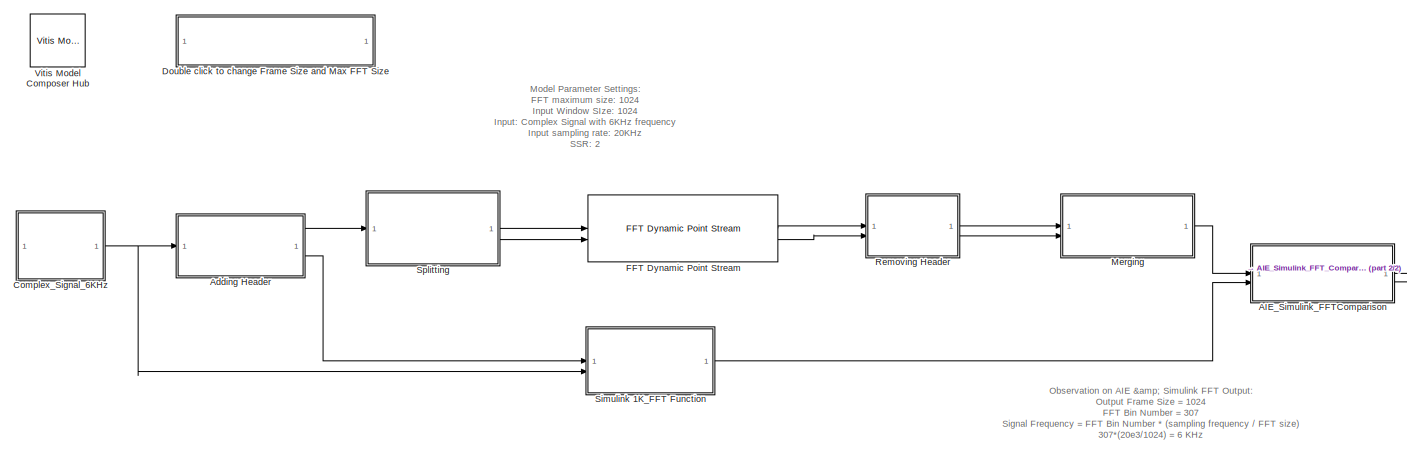
[diagram: root canvas - part 1/2, most of the canvas]
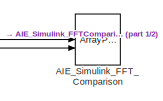
[diagram: root canvas - part 2/2, middle right region]
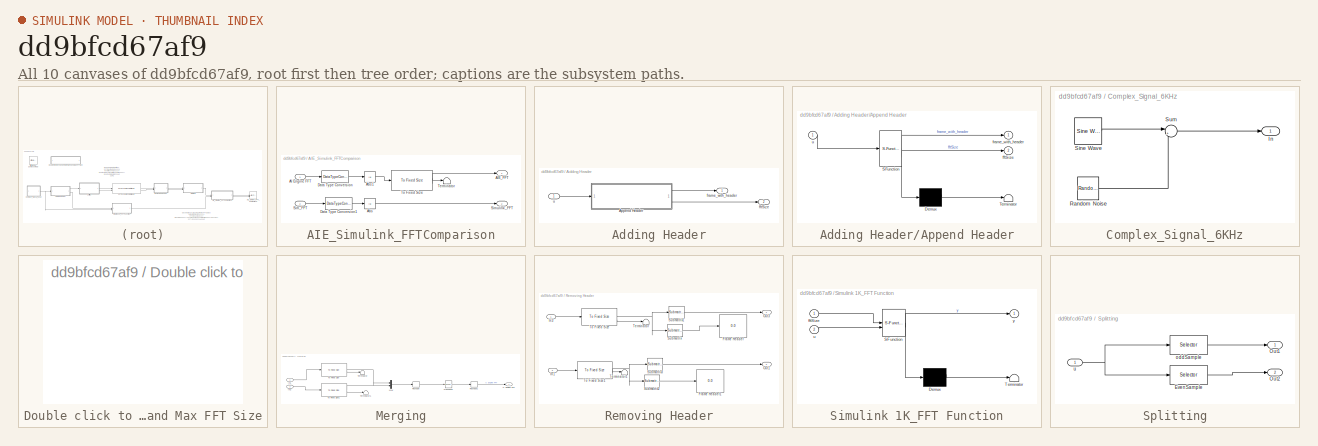
[diagram: thumbnail index - all 10 canvases of the model, root first then tree order]
MODEL slx_dd9bfcd67af9
KIND model
CONFIG AbsTol = auto
CONFIG EnableMultiTasking = off
CONFIG FixedStep = auto
CONFIG MaxStep = auto
CONFIG MinStep = auto
CONFIG RelTol = 1e-3
CONFIG SampleTimeConstraint = Unconstrained
CONFIG SolverName = VariableStepAuto
CONFIG StartTime = 0.0
CONFIG StopTime = 1
WORKSPACE source: mxarray member
WORKSPACE frame_size = 1024
WORKSPACE max_fft_size = 1024
BLOCK [SubSystem] AIE_Simulink_FFTComparison
BLOCK [Inport] AIE_Simulink_FFTComparison/AI Engine FFT
BLOCK [Outport] AIE_Simulink_FFTComparison/AIE_FFT
BLOCK [Abs] AIE_Simulink_FFTComparison/Abs
  SaturateOnIntegerOverflow = off
BLOCK [Abs] AIE_Simulink_FFTComparison/Abs1
  OutDataTypeStr = single
  SaturateOnIntegerOverflow = off
BLOCK [DataTypeConversion] AIE_Simulink_FFTComparison/Data Type Conversion
  OutDataTypeStr = single
  RndMeth = Floor
  SaturateOnIntegerOverflow = off
BLOCK [DataTypeConversion] AIE_Simulink_FFTComparison/Data Type Conversion1
  OutDataTypeStr = single
  RndMeth = Floor
  SaturateOnIntegerOverflow = off
BLOCK [Inport] AIE_Simulink_FFTComparison/Sim_FFT
  Port = 2
BLOCK [Outport] AIE_Simulink_FFTComparison/Simulink_FFT
  Port = 2
BLOCK [Terminator] AIE_Simulink_FFTComparison/Terminator
BLOCK [Reference] AIE_Simulink_FFTComparison/To Fixed Size  REF=aieUtilities/To Fixed Size
  SourceBlock = aieUtilities/To Fixed Size
  SourceType = To Fixed Size
BLOCK [ArrayPlot] AIE_Simulink_FFT_Comparison
  AxesScaling = Manual
  GraphicalSettings = {"Cursors":{"Enabled":false,"XLocation":[2,8],"SnapToData":false,"LockSpacing":false,"ShowText":false},"Peaks":{"NumPeaks":1,"MinHeight":"-Inf","MinDistance":1,"Threshold":0,"LabelPeaks":false,"LabelFormat":"x + y","Enabled":true},"Stats":{"ShowMax":true,"ShowMin":true,"ShowPeakToPeak":true,"ShowMean":true,"ShowVariance":false,"ShowStandardDeviation":true,"ShowMedian":true,"ShowRMS":true,"ShowMean...<+31ch>
  NumInputPorts = 2
  PlotType = Line
  ShowLegend = on
  WasSavedAsWebScope = on
  WindowPosition = [240.000000,110.000000,800.000000,500.000000,]
  YLimits = [-50,1100]
BLOCK [SubSystem] Adding Header
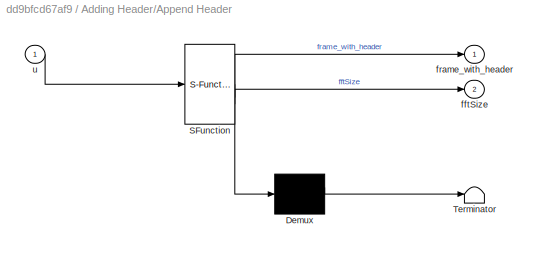
BLOCK [SubSystem] Adding Header/Append Header
  ErrorFcn = Stateflow.Translate.translate
  PermitHierarchicalResolution = ExplicitOnly
  SFBlockType = MATLAB Function
  TreatAsAtomicUnit = on
BLOCK [Demux] Adding Header/Append Header/ Demux 
  Outputs = 1
BLOCK [S-Function] Adding Header/Append Header/ SFunction 
  EnableBusSupport = off
  FunctionName = sf_sfun
  Parameters = fftSizeInput
  PortCounts = [1 3]
  SFcnIsStateOwnerBlock = off
  SFunctionDeploymentMode = off
  Tag = Stateflow S-Function 1
BLOCK [Terminator] Adding Header/Append Header/ Terminator 
BLOCK [Outport] Adding Header/Append Header/fftSize
  Port = 2
BLOCK [Outport] Adding Header/Append Header/frame_with_header
BLOCK [Inport] Adding Header/Append Header/u
BLOCK [Outport] Adding Header/fftSize
  Port = 2
BLOCK [Outport] Adding Header/frame_with_header
BLOCK [Inport] Adding Header/u
BLOCK [SubSystem] Complex_Signal_6KHz
BLOCK [Outport] Complex_Signal_6KHz/In
BLOCK [Reference] Complex_Signal_6KHz/Random Noise  REF=dspobslib/Random
Source
  SourceBlock = dspobslib/Random\nSource
  SourceType = Random Source Obsolete
  UserDataPersistent = on
BLOCK [Reference] Complex_Signal_6KHz/Sine Wave  REF=dspsrcs4/Sine Wave
  SourceBlock = dspsrcs4/Sine Wave
  SourceType = Sine Wave
BLOCK [Sum] Complex_Signal_6KHz/Sum
  Inputs = |++
BLOCK [SubSystem] Double click to change Frame Size and Max FFT Size
BLOCK [Reference] FFT Dynamic Point Stream  REF=aieDSP/FFT Dynamic Point Stream
  SourceBlock = aieDSP/FFT Dynamic Point Stream
  SourceType = FFT Dynamic Point Stream
BLOCK [SubSystem] Merging
BLOCK [Outport] Merging/AI Engine FFT
BLOCK [Inport] Merging/In1
BLOCK [Inport] Merging/In2
  Port = 2
BLOCK [Mux] Merging/Mux
  DisplayOption = bar
  Inputs = 2
BLOCK [Reshape] Merging/Reshape
  OutputDimensionality = Customize
  OutputDimensions = [512, 2]
BLOCK [Reshape] Merging/Reshape1
  OutputDimensions = [1, 10]
BLOCK [Terminator] Merging/Terminator
BLOCK [Terminator] Merging/Terminator1
BLOCK [Reference] Merging/To Fixed Size  REF=aieUtilities/To Fixed Size
  SourceBlock = aieUtilities/To Fixed Size
  SourceType = To Fixed Size
BLOCK [Reference] Merging/To Fixed Size1  REF=aieUtilities/To Fixed Size
  SourceBlock = aieUtilities/To Fixed Size
  SourceType = To Fixed Size
BLOCK [Math] Merging/Transpose
  Operator = transpose
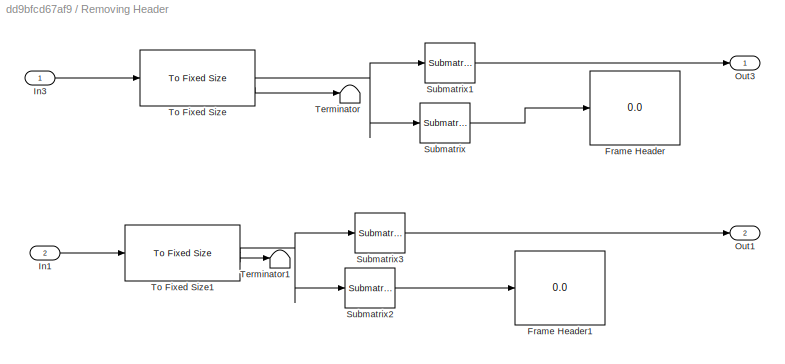
BLOCK [SubSystem] Removing Header
BLOCK [Display] Removing Header/Frame Header
  Decimation = 1
BLOCK [Display] Removing Header/Frame Header1
  Decimation = 1
BLOCK [Inport] Removing Header/In1
  Port = 2
BLOCK [Inport] Removing Header/In3
BLOCK [Outport] Removing Header/Out1
  Port = 2
BLOCK [Outport] Removing Header/Out3
BLOCK [Reference] Removing Header/Submatrix  REF=matrix_library/Submatrix
  SourceBlock = matrix_library/Submatrix
  SourceType = Submatrix
BLOCK [Reference] Removing Header/Submatrix1  REF=matrix_library/Submatrix
  SourceBlock = matrix_library/Submatrix
  SourceType = Submatrix
BLOCK [Reference] Removing Header/Submatrix2  REF=matrix_library/Submatrix
  SourceBlock = matrix_library/Submatrix
  SourceType = Submatrix
BLOCK [Reference] Removing Header/Submatrix3  REF=matrix_library/Submatrix
  SourceBlock = matrix_library/Submatrix
  SourceType = Submatrix
BLOCK [Terminator] Removing Header/Terminator
BLOCK [Terminator] Removing Header/Terminator1
BLOCK [Reference] Removing Header/To Fixed Size  REF=aieUtilities/To Fixed Size
  SourceBlock = aieUtilities/To Fixed Size
  SourceType = To Fixed Size
BLOCK [Reference] Removing Header/To Fixed Size1  REF=aieUtilities/To Fixed Size
  SourceBlock = aieUtilities/To Fixed Size
  SourceType = To Fixed Size
BLOCK [SubSystem] Simulink 1K_FFT Function
  ErrorFcn = Stateflow.Translate.translate
  PermitHierarchicalResolution = ExplicitOnly
  SFBlockType = MATLAB Function
  TreatAsAtomicUnit = on
BLOCK [Demux] Simulink 1K_FFT Function/ Demux 
  Outputs = 1
BLOCK [S-Function] Simulink 1K_FFT Function/ SFunction 
  EnableBusSupport = off
  FunctionName = sf_sfun
  Parameters = frame_size,max_fft_size
  PortCounts = [2 2]
  SFcnIsStateOwnerBlock = off
  SFunctionDeploymentMode = off
  Tag = Stateflow S-Function 2
BLOCK [Terminator] Simulink 1K_FFT Function/ Terminator 
BLOCK [Inport] Simulink 1K_FFT Function/fftSize
BLOCK [Inport] Simulink 1K_FFT Function/u
  Port = 2
BLOCK [Outport] Simulink 1K_FFT Function/y
BLOCK [SubSystem] Splitting
BLOCK [Selector] Splitting/EvenSample
  IndexOptions = Index vector (dialog)
  Indices = 2:2:1032
  InputPortWidth = 1032
  OutputSizes = 1
BLOCK [Outport] Splitting/Out1
BLOCK [Outport] Splitting/Out2
  Port = 2
BLOCK [Selector] Splitting/oddSample
  IndexOptions = Index vector (dialog)
  Indices = 1:2:1032
  InputPortWidth = 1032
  OutputSizes = 1
BLOCK [Inport] Splitting/u
BLOCK [Reference] Vitis Model Composer Hub  REF=vmcUtilities/Vitis Model Composer Hub
  SourceBlock = vmcUtilities/Vitis Model Composer Hub
  SourceType = VMC Hub
  Tag = genX
  UserDataPersistent = on
ANNOTATION (root): Model Parameter Settings: FFT maximum size: 1024 Input Window SIze: 1024 Input: Complex Signal with 6KHz frequency Input sampling rate: 20KHz SSR: 2
ANNOTATION (root): Observation on AIE & Simulink FFT Output: Output Frame Size = 1024 FFT Bin Number = 307 Signal Frequency = FFT Bin Number * (sampling frequency / FFT size) 307*(20e3/1024) = 6 KHz
LINE AIE_Simulink_FFTComparison/AI Engine FFT:1 -> AIE_Simulink_FFTComparison/Data Type Conversion:1
LINE AIE_Simulink_FFTComparison/Abs1:1 -> AIE_Simulink_FFTComparison/To Fixed Size:1
LINE AIE_Simulink_FFTComparison/Abs:1 -> AIE_Simulink_FFTComparison/Simulink_FFT:1
LINE AIE_Simulink_FFTComparison/Data Type Conversion1:1 -> AIE_Simulink_FFTComparison/Abs:1
LINE AIE_Simulink_FFTComparison/Data Type Conversion:1 -> AIE_Simulink_FFTComparison/Abs1:1
LINE AIE_Simulink_FFTComparison/Sim_FFT:1 -> AIE_Simulink_FFTComparison/Data Type Conversion1:1
LINE AIE_Simulink_FFTComparison/To Fixed Size:1 -> AIE_Simulink_FFTComparison/AIE_FFT:1
LINE AIE_Simulink_FFTComparison/To Fixed Size:2 -> AIE_Simulink_FFTComparison/Terminator:1
LINE AIE_Simulink_FFTComparison:1 -> AIE_Simulink_FFT_Comparison:1
LINE AIE_Simulink_FFTComparison:2 -> AIE_Simulink_FFT_Comparison:2
LINE Adding Header/Append Header:1 -> Adding Header/frame_with_header:1
LINE Adding Header/Append Header:2 -> Adding Header/fftSize:1
LINE Adding Header/u:1 -> Adding Header/Append Header:1
LINE Adding Header:1 -> Splitting:1
LINE Adding Header:2 -> Simulink 1K_FFT Function:1
LINE Complex_Signal_6KHz/Random Noise:1 -> Complex_Signal_6KHz/Sum:2
LINE Complex_Signal_6KHz/Sine Wave:1 -> Complex_Signal_6KHz/Sum:1
LINE Complex_Signal_6KHz/Sum:1 -> Complex_Signal_6KHz/In:1
NET Complex_Signal_6KHz:1 -> Adding Header:1, Simulink 1K_FFT Function:2
LINE FFT Dynamic Point Stream:1 -> Removing Header:1
LINE FFT Dynamic Point Stream:2 -> Removing Header:2
LINE Merging/In1:1 -> Merging/To Fixed Size:1
LINE Merging/In2:1 -> Merging/To Fixed Size1:1
LINE Merging/Mux:1 -> Merging/Reshape:1
LINE Merging/Reshape1:1 -> Merging/AI Engine FFT:1
LINE Merging/Reshape:1 -> Merging/Transpose:1
LINE Merging/To Fixed Size1:1 -> Merging/Mux:2
LINE Merging/To Fixed Size1:2 -> Merging/Terminator1:1
LINE Merging/To Fixed Size:1 -> Merging/Mux:1
LINE Merging/To Fixed Size:2 -> Merging/Terminator:1
LINE Merging/Transpose:1 -> Merging/Reshape1:1
LINE Merging:1 -> AIE_Simulink_FFTComparison:1
LINE Removing Header/In1:1 -> Removing Header/To Fixed Size1:1
LINE Removing Header/In3:1 -> Removing Header/To Fixed Size:1
LINE Removing Header/Submatrix1:1 -> Removing Header/Out3:1
LINE Removing Header/Submatrix2:1 -> Removing Header/Frame Header1:1
LINE Removing Header/Submatrix3:1 -> Removing Header/Out1:1
LINE Removing Header/Submatrix:1 -> Removing Header/Frame Header:1
NET Removing Header/To Fixed Size1:1 -> Removing Header/Submatrix2:1, Removing Header/Submatrix3:1
LINE Removing Header/To Fixed Size1:2 -> Removing Header/Terminator1:1
NET Removing Header/To Fixed Size:1 -> Removing Header/Submatrix1:1, Removing Header/Submatrix:1
LINE Removing Header/To Fixed Size:2 -> Removing Header/Terminator:1
LINE Removing Header:1 -> Merging:1
LINE Removing Header:2 -> Merging:2
LINE Simulink 1K_FFT Function:1 -> AIE_Simulink_FFTComparison:2
LINE Splitting/EvenSample:1 -> Splitting/Out2:1
LINE Splitting/oddSample:1 -> Splitting/Out1:1
NET Splitting/u:1 -> Splitting/EvenSample:1, Splitting/oddSample:1
LINE Splitting:1 -> FFT Dynamic Point Stream:1
LINE Splitting:2 -> FFT Dynamic Point Stream:2
note: NET lines group one-source signal fan-out (src -> all destinations, sorted); 1:1 wires keep LINE
CHART Adding Header/Append Header states=1 transitions=1
  STATE_LABEL 'eML_blk_kernel()'
  STATE_LABEL "SCRIPT:\nfunction [frame_with_header, fftSize] = fcn(u, fftSizeInput)\n\npersistent inputFrameNum\n\nif isempty(inputFrameNum)\n    inputFrameNum = 1;    \nend\n\nheaderValueSize = 8; % for SSR=2,int32 and Single data types.  \nheaderValue = zeros(headerValueSize,1);\n\n% fftSize must be an array of power of twos that are smaller than input size\n\nif any( fftSizeInput > length(u))\n    error('fft sizes should b...<+802ch>"
CHART Simulink 1K_FFT Function states=1 transitions=1
  STATE_LABEL 'eML_blk_kernel()'
  STATE_LABEL 'SCRIPT:\nfunction y = fcn(fftSize, u, frame_size, max_fft_size)\n\nout = complex(zeros(frame_size,1));\n\nfor i = 0:frame_size/max_fft_size-1\n    frame_fft = fft(double(u(i*max_fft_size+1:(i+1)*max_fft_size)),fftSize);\n    out(i*max_fft_size+1:(i+1)*max_fft_size) = [frame_fft; zeros(max_fft_size - fftSize,1)];\nend\n\ny = (out(1:frame_size));'
CHART  states=0 transitions=0
CHART  states=0 transitions=0
